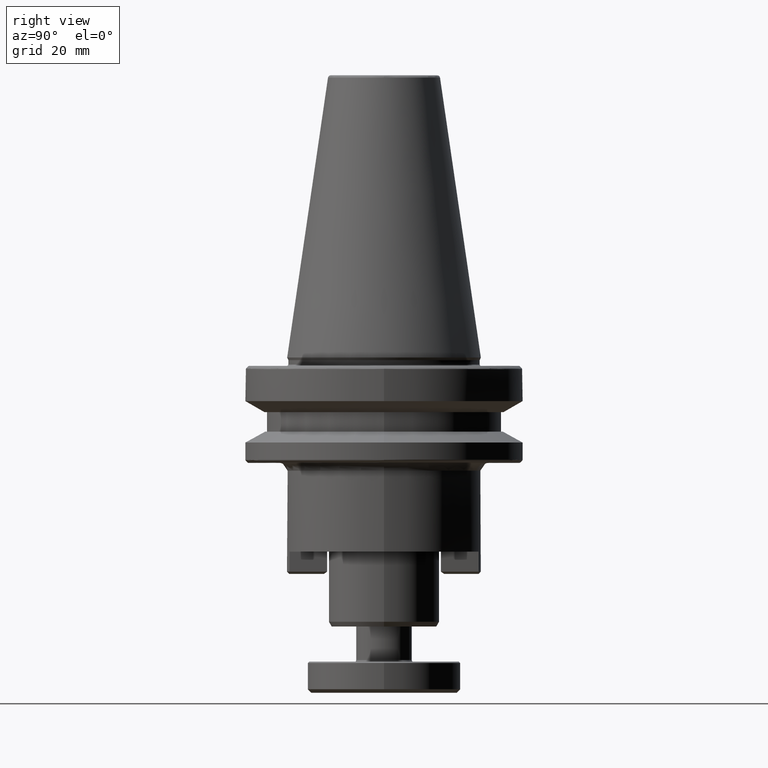
[diagram: clean part render]
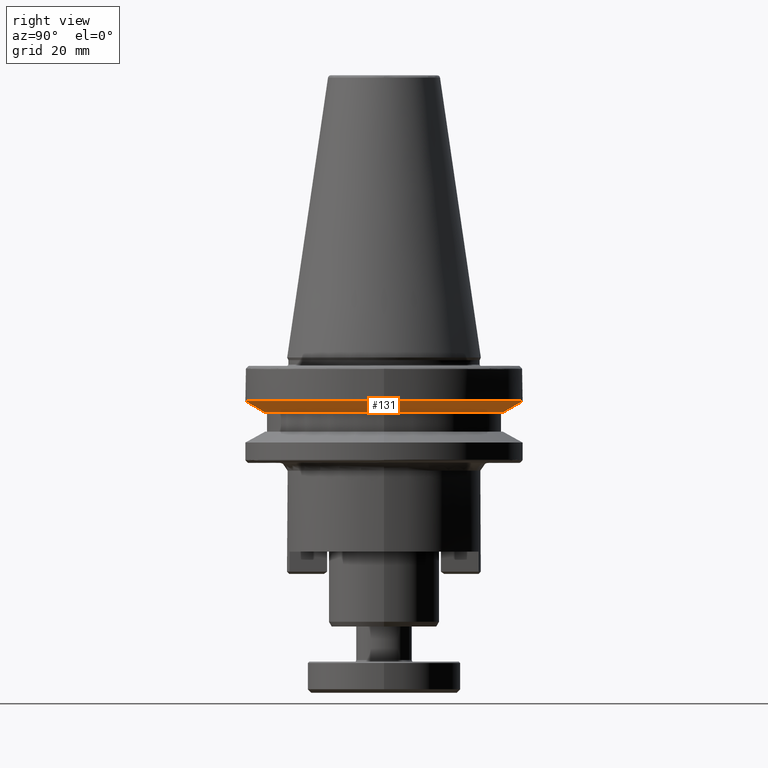
[diagram: same view with one face highlighted and labeled with its STEP entity id]
A machine part, right view. The second image highlights one B-rep face of the part: STEP entity #131.
In plain terms, the highlighted conical surface has half-angle 60 deg.
Its self-contained STEP definition (entity closure, byte-faithful):
#23 = VERTEX_POINT ( 'NONE', #1212 ) ;
#48 = DIRECTION ( 'NONE',  ( 1.000000000000000000, 0.0000000000000000000, 0.0000000000000000000 ) ) ;
#52 = DIRECTION ( 'NONE',  ( -0.0000000000000000000, 0.0000000000000000000, -1.000000000000000000 ) ) ;
#54 = CARTESIAN_POINT ( 'NONE',  ( 0.0000000000000000000, 0.0000000000000000000, -15.70022000429931100 ) ) ;
#58 = ORIENTED_EDGE ( 'NONE', *, *, #2278, .T. ) ;
#75 = LINE ( 'NONE', #2645, #2081 ) ;
#93 = DIRECTION ( 'NONE',  ( 0.0000000000000000000, -3.469446951954708100E-017, 1.000000000000000000 ) ) ;
#131 = ADVANCED_FACE ( 'NONE', ( #1871 ), #1941, .T. ) ;
#146 = CARTESIAN_POINT ( 'NONE',  ( 5.699027233319116800E-015, 43.07217782790527100, -19.69999999889999400 ) ) ;
#161 = DIRECTION ( 'NONE',  ( 0.0000000000000000000, -3.469446951954708100E-017, 1.000000000000000000 ) ) ;
#169 = ORIENTED_EDGE ( 'NONE', *, *, #1805, .F. ) ;
#188 = CIRCLE ( 'NONE', #851, 43.07217782790527100 ) ;
#500 = CARTESIAN_POINT ( 'NONE',  ( 6.123233995734835700E-015, 49.99999999998424000, -15.70022000300909300 ) ) ;
#627 = DIRECTION ( 'NONE',  ( -0.0000000000000000000, 0.0000000000000000000, -1.000000000000000000 ) ) ;
#688 = CIRCLE ( 'NONE', #3115, 49.99999999774951900 ) ;
#851 = AXIS2_PLACEMENT_3D ( 'NONE', #1741, #161, #1699 ) ;
#1049 = CARTESIAN_POINT ( 'NONE',  ( 49.99999999774951900, 0.0000000000000000000, -15.70022000429931100 ) ) ;
#1142 = CARTESIAN_POINT ( 'NONE',  ( 0.0000000000000000000, -49.99999999774952600, -15.70022000429931100 ) ) ;
#1172 = AXIS2_PLACEMENT_3D ( 'NONE', #54, #52, #48 ) ;
#1212 = CARTESIAN_POINT ( 'NONE',  ( 6.123233995461161000E-015, 49.99999999774951200, -15.70022000429931100 ) ) ;
#1392 = ORIENTED_EDGE ( 'NONE', *, *, #1649, .T. ) ;
#1432 = VECTOR ( 'NONE', #1927, 1000.000000000000000 ) ;
#1434 = VERTEX_POINT ( 'NONE', #1142 ) ;
#1473 = ORIENTED_EDGE ( 'NONE', *, *, #2657, .T. ) ;
#1516 = LINE ( 'NONE', #500, #1432 ) ;
#1597 = VERTEX_POINT ( 'NONE', #146 ) ;
#1649 = EDGE_CURVE ( 'NONE', #2557, #1434, #3310, .T. ) ;
#1653 = CARTESIAN_POINT ( 'NONE',  ( 0.0000000000000000000, 0.0000000000000000000, -15.70022000300909700 ) ) ;
#1663 = DIRECTION ( 'NONE',  ( 0.0000000000000000000, -1.000000000000000000, -6.938893903909415000E-017 ) ) ;
#1699 = DIRECTION ( 'NONE',  ( 0.0000000000000000000, -1.000000000000000000, 0.0000000000000000000 ) ) ;
#1741 = CARTESIAN_POINT ( 'NONE',  ( 0.0000000000000000000, 1.387702451523309000E-016, -19.69999999889999400 ) ) ;
#1805 = EDGE_CURVE ( 'NONE', #2811, #1434, #75, .T. ) ;
#1871 = FACE_OUTER_BOUND ( 'NONE', #3170, .T. ) ;
#1927 = DIRECTION ( 'NONE',  ( 1.060575238728669000E-016, 0.8660254037875106900, 0.4999999999946791500 ) ) ;
#1941 = CONICAL_SURFACE ( 'NONE', #2143, 49.99999999998424000, 1.047197551202741800 ) ;
#2081 = VECTOR ( 'NONE', #2825, 1000.000000000000000 ) ;
#2143 = AXIS2_PLACEMENT_3D ( 'NONE', #1653, #93, #1663 ) ;
#2198 = CARTESIAN_POINT ( 'NONE',  ( 0.0000000000000000000, 0.0000000000000000000, -15.70022000429931100 ) ) ;
#2278 = EDGE_CURVE ( 'NONE', #1597, #23, #1516, .T. ) ;
#2449 = DIRECTION ( 'NONE',  ( 1.000000000000000000, 0.0000000000000000000, 0.0000000000000000000 ) ) ;
#2557 = VERTEX_POINT ( 'NONE', #1049 ) ;
#2645 = CARTESIAN_POINT ( 'NONE',  ( 0.0000000000000000000, -49.99999999998424000, -15.70022000300910000 ) ) ;
#2657 = EDGE_CURVE ( 'NONE', #2811, #1597, #188, .T. ) ;
#2811 = VERTEX_POINT ( 'NONE', #3309 ) ;
#2825 = DIRECTION ( 'NONE',  ( 0.0000000000000000000, -0.8660254037875106900, 0.4999999999946790300 ) ) ;
#3055 = EDGE_CURVE ( 'NONE', #23, #2557, #688, .T. ) ;
#3115 = AXIS2_PLACEMENT_3D ( 'NONE', #2198, #627, #2449 ) ;
#3170 = EDGE_LOOP ( 'NONE', ( #1473, #58, #3379, #1392, #169 ) ) ;
#3309 = CARTESIAN_POINT ( 'NONE',  ( 0.0000000000000000000, -43.07217782790527100, -19.69999999889999400 ) ) ;
#3310 = CIRCLE ( 'NONE', #1172, 49.99999999774951900 ) ;
#3379 = ORIENTED_EDGE ( 'NONE', *, *, #3055, .T. ) ;